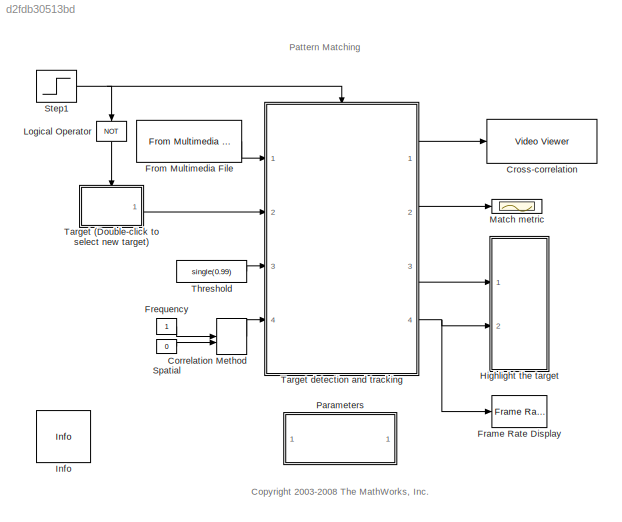
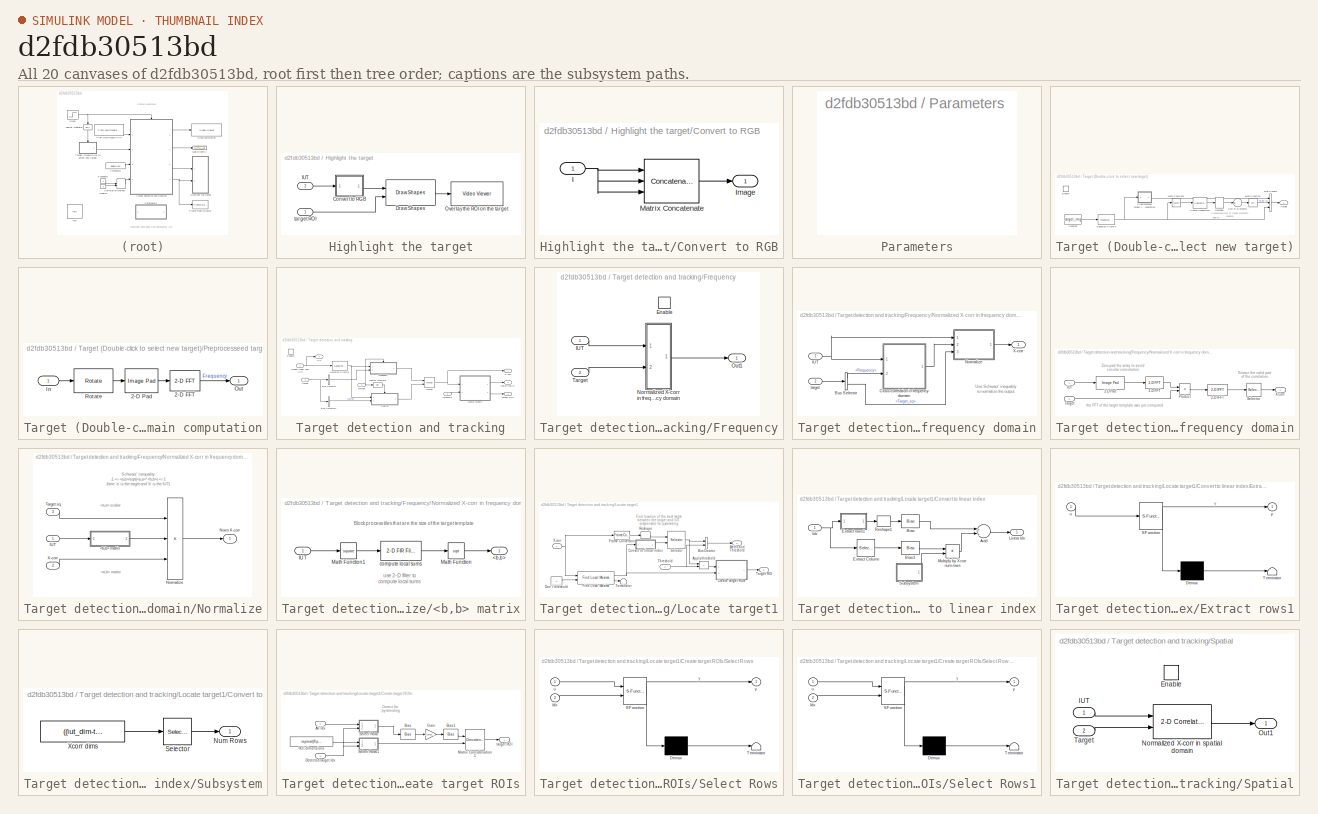
[diagram: thumbnail index - all 20 canvases of the model, root first then tree order]
MODEL slx_d2fdb30513bd
KIND model
CONFIG AbsTol = auto
CONFIG FixedStep = auto
CONFIG InitFcn = % load and initialize the data required by vippattern demo\n\n% get path to the model\nparam_path = 'vippattern/Parameters';\n\n% NOTE:  to set a new target run this command from command prompt:\n% set_param(param_path,'target',mat2str(target_img))\n% here, target_img must be a uint8 image\n\n% get AVI file name straight from From MM File block\nfmmf_path = 'vippattern/From Multimedia File';\n\n% get target w...<+964ch>
CONFIG MaxStep = auto
CONFIG MinStep = auto
CONFIG RelTol = 1e-3
CONFIG SampleTimeConstraint = Unconstrained
CONFIG Solver = FixedStepDiscrete
CONFIG SolverMode = SingleTasking
CONFIG SolverName = FixedStepDiscrete
CONFIG StartTime = 0.0
CONFIG StopTime = inf
BLOCK [ManualSwitch] Correlation Method
BLOCK [Reference] Cross-correlation  REF=visionsinks/Video Viewer
  Ports = [1]
  SourceBlock = visionsinks/Video Viewer
  SourceType = Video Viewer
  UserDataPersistent = on
BLOCK [Reference] Frame Rate Display  REF=visionsinks/Frame Rate
Display
  Ports = [1]
  SourceBlock = visionsinks/Frame Rate\nDisplay
  SourceType = Frame Rate Display
BLOCK [Constant] Frequency
  VectorParams1D = off
BLOCK [Reference] From Multimedia File  REF=dspvision/From Multimedia File
  Ports = [0, 1]
  SourceBlock = dspvision/From Multimedia File
  SourceType = From Multimedia File
BLOCK [SubSystem] Highlight the target
  Ports = [2]
  RequestExecContextInheritance = off
  Variant = off
BLOCK [SubSystem] Highlight the target/Convert to RGB
  Ports = [1, 1]
  RequestExecContextInheritance = off
  Variant = off
BLOCK [Inport] Highlight the target/Convert to RGB/I
  IconDisplay = Port number
BLOCK [Outport] Highlight the target/Convert to RGB/Image
  IconDisplay = Port number
BLOCK [Concatenate] Highlight the target/Convert to RGB/Matrix Concatenate
  ConcatenateDimension = 3
  Mode = Multidimensional array
  NumInputs = 3
  Ports = [3, 1]
BLOCK [Reference] Highlight the target/Draw Shapes  REF=visiontextngfix/Draw Shapes
  Ports = [2, 1]
  SourceBlock = visiontextngfix/Draw Shapes
  SourceType = Draw Shapes
BLOCK [Inport] Highlight the target/IUT
  IconDisplay = Port number
  Port = 2
BLOCK [Reference] Highlight the target/Overlay the ROI on the target  REF=visionsinks/Video Viewer
  Ports = [1]
  SourceBlock = visionsinks/Video Viewer
  SourceType = Video Viewer
  UserDataPersistent = on
BLOCK [Inport] Highlight the target/target ROI
  IconDisplay = Port number
BLOCK [Reference] Info  REF=vipmisc/Info
  Ports = []
  SourceBlock = vipmisc/Info
  SourceType = Info
BLOCK [Logic] Logical Operator
  AllPortsSameDT = off
  Operator = NOT
  OutDataTypeStr = boolean
  Ports = [1, 1]
BLOCK [Scope] Match metric
  Ports = [1]
  ScopeSpecificationString = Simulink.scopes.TimeScopeBlockCfg('CurrentConfiguration', extmgr.ConfigurationSet(extmgr.Configuration('Core','General UI',true),extmgr.Configuration('Core','Source UI',true),extmgr.Configuration('Sources','WiredSimulink',true,'DataLoggingSaveFormat','StructureWithTime','DataLoggingLimitDataPoints',true,'DataLoggingDecimation','1','DataLoggingDecimateData',true),extmgr.Configuration('Visuals','Tim...<+1685ch>
BLOCK [SubSystem] Parameters
  Ports = []
  RequestExecContextInheritance = off
  Variant = off
BLOCK [Constant] Spatial
  Value = 0
  VectorParams1D = off
BLOCK [Step] Step1
  Time = eps
BLOCK [SubSystem] Target (Double-click to select new target)
  OpenFcn = vippattern_gettemplate
  Ports = [0, 1, 1]
  RequestExecContextInheritance = off
  Variant = off
BLOCK [BusCreator] Target (Double-click to select new target)/Bus Creator
  DisplayOption = bar
  InheritFromInputs = on
  Inputs = 3
  Ports = [3, 1]
BLOCK [Constant] Target (Double-click to select new target)/Constant
  OutDataTypeStr = single
  Value = target_img
  VectorParams1D = off
BLOCK [EnablePort] Target (Double-click to select new target)/Enable
  Ports = []
  PropagateVarSize = During execution
BLOCK [FrameConversion] Target (Double-click to select new target)/Frame Conversion
  InheritSamplingMode = off
  OutFrame = Sample-based
  Ports = [1, 1]
BLOCK [Reference] Target (Double-click to select new target)/Gaussian Pyramid  REF=visiontransforms/Gaussian
Pyramid
  Ports = [1, 1]
  SourceBlock = visiontransforms/Gaussian\nPyramid
  SourceType = Gaussian Pyramid
BLOCK [Math] Target (Double-click to select new target)/Math Function
  Operator = sqrt
  Ports = [1, 1]
BLOCK [Math] Target (Double-click to select new target)/Math Function1
  Operator = square
  Ports = [1, 1]
BLOCK [SubSystem] Target (Double-click to select new target)/Preprocesseed target for frequency domain computation
  Ports = [1, 1]
  RequestExecContextInheritance = off
  Variant = off
BLOCK [Reference] Target (Double-click to select new target)/Preprocesseed target for frequency domain computation/2-D FFT  REF=visiontransforms/2-D FFT
  Ports = [1, 1]
  SourceBlock = visiontransforms/2-D FFT
  SourceType = 2-D FFT
BLOCK [Reference] Target (Double-click to select new target)/Preprocesseed target for frequency domain computation/2-D Pad  REF=visionutilities/Image Pad
  Ports = [1, 1]
  SourceBlock = visionutilities/Image Pad
  SourceType = Image Pad
BLOCK [Inport] Target (Double-click to select new target)/Preprocesseed target for frequency domain computation/In
  IconDisplay = Port number
BLOCK [Outport] Target (Double-click to select new target)/Preprocesseed target for frequency domain computation/Out
  IconDisplay = Port number
BLOCK [Reference] Target (Double-click to select new target)/Preprocesseed target for frequency domain computation/Rotate  REF=visiongeotforms/Rotate
  Ports = [1, 1]
  SourceBlock = visiongeotforms/Rotate
  SourceType = Rotate
BLOCK [Reshape] Target (Double-click to select new target)/Reshape
  Ports = [1, 1]
BLOCK [Sum] Target (Double-click to select new target)/Sum of Elements
  InputSameDT = off
  Inputs = +
  OutDataTypeStr = Inherit: Inherit via internal rule
  Ports = [1, 1]
  SaturateOnIntegerOverflow = off
BLOCK [Outport] Target (Double-click to select new target)/Target
  IconDisplay = Port number
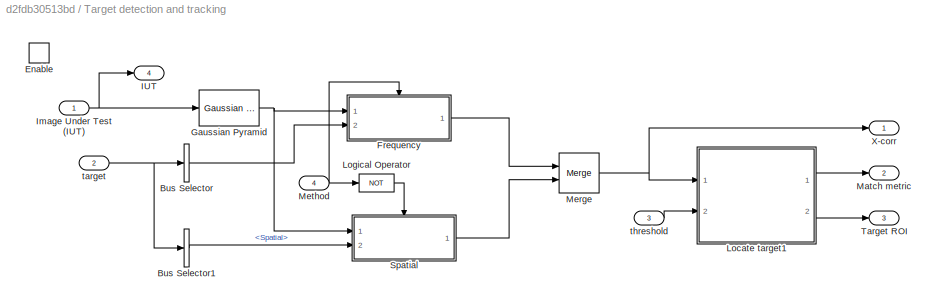
BLOCK [SubSystem] Target detection and tracking
  Ports = [4, 4, 1]
  RequestExecContextInheritance = off
  Variant = off
BLOCK [BusSelector] Target detection and tracking/Bus Selector
  OutputAsBus = on
  OutputSignals = Frequency,Target_sq
  Ports = [1, 1]
BLOCK [BusSelector] Target detection and tracking/Bus Selector1
  OutputSignals = Spatial
  Ports = [1, 1]
BLOCK [EnablePort] Target detection and tracking/Enable
  Ports = []
  PropagateVarSize = During execution
BLOCK [SubSystem] Target detection and tracking/Frequency
  Ports = [2, 1, 1]
  RequestExecContextInheritance = off
  TreatAsAtomicUnit = on
  Variant = off
BLOCK [EnablePort] Target detection and tracking/Frequency/Enable
  Ports = []
  PropagateVarSize = During execution
BLOCK [Inport] Target detection and tracking/Frequency/IUT
  IconDisplay = Port number
BLOCK [SubSystem] Target detection and tracking/Frequency/Normalized X-corr in frequency domain
  Ports = [2, 1]
  RequestExecContextInheritance = off
  Variant = off
BLOCK [BusSelector] Target detection and tracking/Frequency/Normalized X-corr in frequency domain/Bus Selector
  OutputSignals = Frequency,Target_sq
  Ports = [1, 2]
BLOCK [SubSystem] Target detection and tracking/Frequency/Normalized X-corr in frequency domain/Cross-correlation in frequency domain
  Ports = [2, 1]
  RequestExecContextInheritance = off
  Variant = off
BLOCK [Reference] Target detection and tracking/Frequency/Normalized X-corr in frequency domain/Cross-correlation in frequency domain/2-D FFT  REF=visiontransforms/2-D FFT
  Ports = [1, 1]
  SourceBlock = visiontransforms/2-D FFT
  SourceType = 2-D FFT
BLOCK [Reference] Target detection and tracking/Frequency/Normalized X-corr in frequency domain/Cross-correlation in frequency domain/2-D IFFT  REF=visiontransforms/2-D IFFT
  Ports = [1, 1]
  SourceBlock = visiontransforms/2-D IFFT
  SourceType = 2-D IFFT
BLOCK [Reference] Target detection and tracking/Frequency/Normalized X-corr in frequency domain/Cross-correlation in frequency domain/2-D Pad  REF=visionutilities/Image Pad
  Ports = [1, 1]
  SourceBlock = visionutilities/Image Pad
  SourceType = Image Pad
BLOCK [Inport] Target detection and tracking/Frequency/Normalized X-corr in frequency domain/Cross-correlation in frequency domain/IUT
  IconDisplay = Port number
BLOCK [Product] Target detection and tracking/Frequency/Normalized X-corr in frequency domain/Cross-correlation in frequency domain/Product
  InputSameDT = off
  OutDataTypeStr = Inherit: Inherit via internal rule
  Ports = [2, 1]
  SaturateOnIntegerOverflow = off
BLOCK [Selector] Target detection and tracking/Frequency/Normalized X-corr in frequency domain/Cross-correlation in frequency domain/Selector
  IndexOptions = Index vector (dialog),Index vector (dialog)
  Indices = [target_dim(1):iut_dim(1)],[target_dim(2):iut_dim(2)]
  InputPortWidth = 3
  NumberOfDimensions = 2
  OutputSizes = 1,1
  Ports = [1, 1]
BLOCK [Inport] Target detection and tracking/Frequency/Normalized X-corr in frequency domain/Cross-correlation in frequency domain/Target
  IconDisplay = Port number
  Port = 2
BLOCK [Outport] Target detection and tracking/Frequency/Normalized X-corr in frequency domain/Cross-correlation in frequency domain/X-Corr
  IconDisplay = Port number
BLOCK [Inport] Target detection and tracking/Frequency/Normalized X-corr in frequency domain/IUT
  IconDisplay = Port number
BLOCK [SubSystem] Target detection and tracking/Frequency/Normalized X-corr in frequency domain/Normalize
  Ports = [3, 1]
  RequestExecContextInheritance = off
  Variant = off
BLOCK [SubSystem] Target detection and tracking/Frequency/Normalized X-corr in frequency domain/Normalize/<b,b> matrix
  Ports = [1, 1]
  RequestExecContextInheritance = off
  Variant = off
BLOCK [Outport] Target detection and tracking/Frequency/Normalized X-corr in frequency domain/Normalize/<b,b> matrix/<b,b>
  IconDisplay = Port number
BLOCK [Inport] Target detection and tracking/Frequency/Normalized X-corr in frequency domain/Normalize/<b,b> matrix/IUT
  IconDisplay = Port number
BLOCK [Math] Target detection and tracking/Frequency/Normalized X-corr in frequency domain/Normalize/<b,b> matrix/Math Function
  Operator = sqrt
  Ports = [1, 1]
BLOCK [Math] Target detection and tracking/Frequency/Normalized X-corr in frequency domain/Normalize/<b,b> matrix/Math Function1
  Operator = square
  Ports = [1, 1]
BLOCK [Reference] Target detection and tracking/Frequency/Normalized X-corr in frequency domain/Normalize/<b,b> matrix/compute local sums  REF=visionfilter/2-D FIR Filter
  Ports = [1, 1]
  SourceBlock = visionfilter/2-D FIR Filter
  SourceType = 2-D FIR Filter
BLOCK [Inport] Target detection and tracking/Frequency/Normalized X-corr in frequency domain/Normalize/IUT
  IconDisplay = Port number
BLOCK [Outport] Target detection and tracking/Frequency/Normalized X-corr in frequency domain/Normalize/Norm X-corr
  IconDisplay = Port number
BLOCK [Product] Target detection and tracking/Frequency/Normalized X-corr in frequency domain/Normalize/Normalize
  InputSameDT = off
  Inputs = //*
  Ports = [3, 1]
BLOCK [Inport] Target detection and tracking/Frequency/Normalized X-corr in frequency domain/Normalize/Target sq
  IconDisplay = Port number
  Port = 3
BLOCK [Inport] Target detection and tracking/Frequency/Normalized X-corr in frequency domain/Normalize/X-corr
  IconDisplay = Port number
  Port = 2
BLOCK [Outport] Target detection and tracking/Frequency/Normalized X-corr in frequency domain/X-corr
  IconDisplay = Port number
BLOCK [Inport] Target detection and tracking/Frequency/Normalized X-corr in frequency domain/target
  IconDisplay = Port number
  Port = 2
BLOCK [Outport] Target detection and tracking/Frequency/Out1
  IconDisplay = Port number
  InitialOutput = 0
BLOCK [Inport] Target detection and tracking/Frequency/Target
  IconDisplay = Port number
  Port = 2
BLOCK [Reference] Target detection and tracking/Gaussian Pyramid  REF=visiontransforms/Gaussian
Pyramid
  Ports = [1, 1]
  SourceBlock = visiontransforms/Gaussian\nPyramid
  SourceType = Gaussian Pyramid
BLOCK [Outport] Target detection and tracking/IUT
  IconDisplay = Port number
  Port = 4
BLOCK [Inport] Target detection and tracking/Image Under Test (IUT)
  IconDisplay = Port number
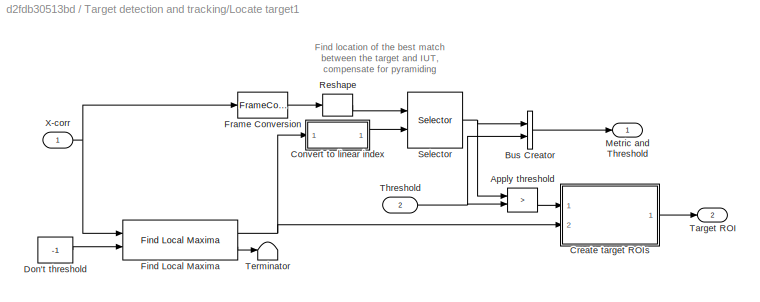
BLOCK [SubSystem] Target detection and tracking/Locate target1
  Ports = [2, 2]
  RequestExecContextInheritance = off
  Variant = off
BLOCK [RelationalOperator] Target detection and tracking/Locate target1/Apply threshold
  InputSameDT = off
  Operator = >
  OutDataTypeStr = boolean
  Ports = [2, 1]
  ZeroCross = off
BLOCK [BusCreator] Target detection and tracking/Locate target1/Bus Creator
  DisplayOption = bar
  InheritFromInputs = on
  Inputs = 2
  Ports = [2, 1]
BLOCK [SubSystem] Target detection and tracking/Locate target1/Convert to linear index
  Ports = [1, 1]
  RequestExecContextInheritance = off
  Variant = off
BLOCK [Sum] Target detection and tracking/Locate target1/Convert to linear index/Add
  InputSameDT = off
  OutDataTypeStr = Inherit: Inherit via internal rule
  Ports = [2, 1]
  SaturateOnIntegerOverflow = off
BLOCK [Bias] Target detection and tracking/Locate target1/Convert to linear index/Bias
  Bias = -1
BLOCK [Bias] Target detection and tracking/Locate target1/Convert to linear index/Bias1
  Bias = -1
BLOCK [Selector] Target detection and tracking/Locate target1/Convert to linear index/Extract Column
  IndexOptions = Select all,Index vector (dialog)
  Indices = [target_dim(1):iut_dim(1)],[1]
  InputPortWidth = 3
  NumberOfDimensions = 2
  OutputSizes = 1,1
  Ports = [1, 1]
BLOCK [SubSystem] Target detection and tracking/Locate target1/Convert to linear index/Extract rows1
  ErrorFcn = Stateflow.Translate.translate
  PermitHierarchicalResolution = ExplicitOnly
  Ports = [1, 1]
  RequestExecContextInheritance = off
  SFBlockType = MATLAB Function
  TreatAsAtomicUnit = on
  Variant = off
BLOCK [Demux] Target detection and tracking/Locate target1/Convert to linear index/Extract rows1/ Demux 
  Outputs = 1
  Ports = [1, 1]
BLOCK [S-Function] Target detection and tracking/Locate target1/Convert to linear index/Extract rows1/ SFunction 
  EnableBusSupport = off
  FunctionName = sf_sfun
  PortCounts = [1 2]
  Ports = [1, 2]
  SFunctionDeploymentMode = off
  Tag = Stateflow S-Function vippattern 1
BLOCK [Terminator] Target detection and tracking/Locate target1/Convert to linear index/Extract rows1/ Terminator 
BLOCK [Inport] Target detection and tracking/Locate target1/Convert to linear index/Extract rows1/u
  IconDisplay = Port number
BLOCK [Outport] Target detection and tracking/Locate target1/Convert to linear index/Extract rows1/y
  IconDisplay = Port number
BLOCK [Inport] Target detection and tracking/Locate target1/Convert to linear index/Idx
  IconDisplay = Port number
BLOCK [Outport] Target detection and tracking/Locate target1/Convert to linear index/Linear Idx
  IconDisplay = Port number
BLOCK [Product] Target detection and tracking/Locate target1/Convert to linear index/Multiply by Xcorr num rows
  InputSameDT = off
  OutDataTypeStr = uint32
  Ports = [2, 1]
  SaturateOnIntegerOverflow = off
BLOCK [Reshape] Target detection and tracking/Locate target1/Convert to linear index/Reshape1
  OutputDimensionality = Column vector (2-D)
  Ports = [1, 1]
BLOCK [SubSystem] Target detection and tracking/Locate target1/Convert to linear index/Subsystem
  Ports = [0, 1]
  RequestExecContextInheritance = off
  Variant = off
BLOCK [Outport] Target detection and tracking/Locate target1/Convert to linear index/Subsystem/Num Rows
  IconDisplay = Port number
BLOCK [Selector] Target detection and tracking/Locate target1/Convert to linear index/Subsystem/Selector
  IndexOptions = Index vector (dialog),Index vector (dialog)
  Indices = 1,1
  InputPortWidth = 3
  NumberOfDimensions = 2
  OutputSizes = 1,1
  Ports = [1, 1]
BLOCK [Constant] Target detection and tracking/Locate target1/Convert to linear index/Subsystem/Xcorr dims
  OutDataTypeStr = Inherit: Inherit via back propagation
  Value = ((iut_dim-target_dim)+1)
  VectorParams1D = off
BLOCK [SubSystem] Target detection and tracking/Locate target1/Create target ROIs
  Ports = [2, 1]
  RequestExecContextInheritance = off
  Variant = off
BLOCK [Inport] Target detection and tracking/Locate target1/Create target ROIs/All Idx
  IconDisplay = Port number
  Port = 2
BLOCK [Bias] Target detection and tracking/Locate target1/Create target ROIs/Bias
  Bias = -1
BLOCK [Bias] Target detection and tracking/Locate target1/Create target ROIs/Bias1
  Bias = +1
BLOCK [Inport] Target detection and tracking/Locate target1/Create target ROIs/Detected-target Idx
  IconDisplay = Port number
BLOCK [Gain] Target detection and tracking/Locate target1/Create target ROIs/Gain
  Gain = 2^pfactor
  ParamDataTypeStr = float('single')
  RndMeth = Nearest
BLOCK [Concatenate] Target detection and tracking/Locate target1/Create target ROIs/Matrix Concatenation1
  ConcatenateDimension = 2
  Mode = Multidimensional array
  Ports = [2, 1]
BLOCK [Constant] Target detection and tracking/Locate target1/Create target ROIs/ROI dimensions
  OutDataTypeStr = single
  Value = repmat(fliplr(target_dim_nopyramid),[num_targets,1])
  VectorParams1D = off
BLOCK [SubSystem] Target detection and tracking/Locate target1/Create target ROIs/Select Rows
  ErrorFcn = Stateflow.Translate.translate
  PermitHierarchicalResolution = ExplicitOnly
  Ports = [2, 1]
  RequestExecContextInheritance = off
  SFBlockType = MATLAB Function
  TreatAsAtomicUnit = on
  Variant = off
BLOCK [Demux] Target detection and tracking/Locate target1/Create target ROIs/Select Rows/ Demux 
  Outputs = 1
  Ports = [1, 1]
BLOCK [S-Function] Target detection and tracking/Locate target1/Create target ROIs/Select Rows/ SFunction 
  EnableBusSupport = off
  FunctionName = sf_sfun
  PortCounts = [2 2]
  Ports = [2, 2]
  SFunctionDeploymentMode = off
  Tag = Stateflow S-Function vippattern 2
BLOCK [Terminator] Target detection and tracking/Locate target1/Create target ROIs/Select Rows/ Terminator 
BLOCK [Inport] Target detection and tracking/Locate target1/Create target ROIs/Select Rows/Idx
  IconDisplay = Port number
  Port = 2
BLOCK [Inport] Target detection and tracking/Locate target1/Create target ROIs/Select Rows/u
  IconDisplay = Port number
BLOCK [Outport] Target detection and tracking/Locate target1/Create target ROIs/Select Rows/y
  IconDisplay = Port number
BLOCK [SubSystem] Target detection and tracking/Locate target1/Create target ROIs/Select Rows1
  ErrorFcn = Stateflow.Translate.translate
  PermitHierarchicalResolution = ExplicitOnly
  Ports = [2, 1]
  RequestExecContextInheritance = off
  SFBlockType = MATLAB Function
  TreatAsAtomicUnit = on
  Variant = off
BLOCK [Demux] Target detection and tracking/Locate target1/Create target ROIs/Select Rows1/ Demux 
  Outputs = 1
  Ports = [1, 1]
BLOCK [S-Function] Target detection and tracking/Locate target1/Create target ROIs/Select Rows1/ SFunction 
  EnableBusSupport = off
  FunctionName = sf_sfun
  PortCounts = [2 2]
  Ports = [2, 2]
  SFunctionDeploymentMode = off
  Tag = Stateflow S-Function vippattern 3
BLOCK [Terminator] Target detection and tracking/Locate target1/Create target ROIs/Select Rows1/ Terminator 
BLOCK [Inport] Target detection and tracking/Locate target1/Create target ROIs/Select Rows1/Idx
  IconDisplay = Port number
  Port = 2
BLOCK [Inport] Target detection and tracking/Locate target1/Create target ROIs/Select Rows1/u
  IconDisplay = Port number
BLOCK [Outport] Target detection and tracking/Locate target1/Create target ROIs/Select Rows1/y
  IconDisplay = Port number
BLOCK [Outport] Target detection and tracking/Locate target1/Create target ROIs/target ROI
  IconDisplay = Port number
BLOCK [Constant] Target detection and tracking/Locate target1/Don't threshold
  OutDataTypeStr = Inherit: Inherit via back propagation
  Value = -1
  VectorParams1D = off
BLOCK [Reference] Target detection and tracking/Locate target1/Find Local Maxima  REF=visionstatistics/Find Local Maxima
  Ports = [2, 2]
  SourceBlock = visionstatistics/Find Local Maxima
  SourceType = Find Local Maxima
BLOCK [FrameConversion] Target detection and tracking/Locate target1/Frame Conversion
  InheritSamplingMode = off
  OutFrame = Sample-based
  Ports = [1, 1]
BLOCK [Outport] Target detection and tracking/Locate target1/Metric and Threshold
  IconDisplay = Port number
BLOCK [Reshape] Target detection and tracking/Locate target1/Reshape
  Ports = [1, 1]
BLOCK [Selector] Target detection and tracking/Locate target1/Selector
  IndexMode = Zero-based
  IndexOptions = Index vector (port)
  Indices = [1 3]
  InputPortWidth = prod(((iut_dim-target_dim)+1))
  OutputSizes = 1
  Ports = [2, 1]
BLOCK [Outport] Target detection and tracking/Locate target1/Target ROI
  IconDisplay = Port number
  Port = 2
BLOCK [Terminator] Target detection and tracking/Locate target1/Terminator
BLOCK [Inport] Target detection and tracking/Locate target1/Threshold
  IconDisplay = Port number
  Port = 2
BLOCK [Inport] Target detection and tracking/Locate target1/X-corr
  IconDisplay = Port number
BLOCK [Logic] Target detection and tracking/Logical Operator
  AllPortsSameDT = off
  Operator = NOT
  OutDataTypeStr = boolean
  Ports = [1, 1]
BLOCK [Outport] Target detection and tracking/Match metric
  IconDisplay = Port number
  Port = 2
BLOCK [Merge] Target detection and tracking/Merge
  Ports = [2, 1]
BLOCK [Inport] Target detection and tracking/Method
  IconDisplay = Port number
  Port = 4
BLOCK [SubSystem] Target detection and tracking/Spatial
  Ports = [2, 1, 1]
  RequestExecContextInheritance = off
  TreatAsAtomicUnit = on
  Variant = off
BLOCK [EnablePort] Target detection and tracking/Spatial/Enable
  Ports = []
  PropagateVarSize = During execution
BLOCK [Inport] Target detection and tracking/Spatial/IUT
  IconDisplay = Port number
BLOCK [Reference] Target detection and tracking/Spatial/Normalized X-corr in spatial domain  REF=visionstatistics/2-D Correlation
  Ports = [2, 1]
  SourceBlock = visionstatistics/2-D Correlation
  SourceType = 2-D Correlation
BLOCK [Outport] Target detection and tracking/Spatial/Out1
  IconDisplay = Port number
  InitialOutput = 0
BLOCK [Inport] Target detection and tracking/Spatial/Target
  IconDisplay = Port number
  Port = 2
BLOCK [Outport] Target detection and tracking/Target ROI
  IconDisplay = Port number
  Port = 3
BLOCK [Outport] Target detection and tracking/X-corr
  IconDisplay = Port number
BLOCK [Inport] Target detection and tracking/target
  IconDisplay = Port number
  Port = 2
BLOCK [Inport] Target detection and tracking/threshold
  IconDisplay = Port number
  Port = 3
BLOCK [Constant] Threshold
  Value = single(0.99)
  VectorParams1D = off
ANNOTATION (root): <copyright redacted>
ANNOTATION (root): Pattern Matching
ANNOTATION Target (Double-click to select new target): Precompute sum of target elements squared
ANNOTATION Target detection and tracking/Frequency/Normalized X-corr in frequency domain: Use Schwarz' inequality to normalize the output
ANNOTATION Target detection and tracking/Frequency/Normalized X-corr in frequency domain/Cross-correlation in frequency domain: Extract the valid part of the correlation
ANNOTATION Target detection and tracking/Frequency/Normalized X-corr in frequency domain/Cross-correlation in frequency domain: Zero-pad the array to avoid circular convolution
ANNOTATION Target detection and tracking/Frequency/Normalized X-corr in frequency domain/Cross-correlation in frequency domain: the FFT of the target template was pre-computed
ANNOTATION Target detection and tracking/Frequency/Normalized X-corr in frequency domain/Normalize: scalar
ANNOTATION Target detection and tracking/Frequency/Normalized X-corr in frequency domain/Normalize: matrix
ANNOTATION Target detection and tracking/Frequency/Normalized X-corr in frequency domain/Normalize: Schwarz' inequality: -1 /sqrt( * ) <= 1 (here 'a' is the target and 'b' is the IUT)
ANNOTATION Target detection and tracking/Frequency/Normalized X-corr in frequency domain/Normalize/<b,b> matrix: Block process tiles that are the size of the target template
ANNOTATION Target detection and tracking/Frequency/Normalized X-corr in frequency domain/Normalize/<b,b> matrix: use 2-D filter to compute local sums
ANNOTATION Target detection and tracking/Locate target1: Find location of the best match between the target and IUT, compensate for pyramiding
ANNOTATION Target detection and tracking/Locate target1/Create target ROIs: Correct for pyramiding
LINE Correlation Method:1 -> Target detection and tracking:4
LINE Frequency:1 -> Correlation Method:1
LINE From Multimedia File:1 -> Target detection and tracking:1
NET Highlight the target/Convert to RGB/I:1 -> Highlight the target/Convert to RGB/Matrix Concatenate:1, Highlight the target/Convert to RGB/Matrix Concatenate:2, Highlight the target/Convert to RGB/Matrix Concatenate:3
LINE Highlight the target/Convert to RGB/Matrix Concatenate:1 -> Highlight the target/Convert to RGB/Image:1
LINE Highlight the target/Convert to RGB:1 -> Highlight the target/Draw Shapes:1
LINE Highlight the target/Draw Shapes:1 -> Highlight the target/Overlay the ROI on the target:1
LINE Highlight the target/IUT:1 -> Highlight the target/Convert to RGB:1
LINE Highlight the target/target ROI:1 -> Highlight the target/Draw Shapes:2
LINE Logical Operator:1 -> Target (Double-click to select new target):enable
LINE Spatial:1 -> Correlation Method:2
NET Step1:1 -> Logical Operator:1, Target detection and tracking:enable
LINE Target (Double-click to select new target)/Bus Creator:1 -> Target (Double-click to select new target)/Target:1
LINE Target (Double-click to select new target)/Constant:1 -> Target (Double-click to select new target)/Gaussian Pyramid:1
LINE Target (Double-click to select new target)/Frame Conversion:1 -> Target (Double-click to select new target)/Reshape:1
NET Target (Double-click to select new target)/Gaussian Pyramid:1 -> Target (Double-click to select new target)/Bus Creator:3, Target (Double-click to select new target)/Math Function1:1, Target (Double-click to select new target)/Preprocesseed target for frequency domain computation:1
LINE Target (Double-click to select new target)/Math Function1:1 -> Target (Double-click to select new target)/Frame Conversion:1
LINE Target (Double-click to select new target)/Math Function:1 -> Target (Double-click to select new target)/Bus Creator:2
LINE Target (Double-click to select new target)/Preprocesseed target for frequency domain computation/2-D FFT:1 -> Target (Double-click to select new target)/Preprocesseed target for frequency domain computation/Out:1
LINE Target (Double-click to select new target)/Preprocesseed target for frequency domain computation/2-D Pad:1 -> Target (Double-click to select new target)/Preprocesseed target for frequency domain computation/2-D FFT:1
LINE Target (Double-click to select new target)/Preprocesseed target for frequency domain computation/In:1 -> Target (Double-click to select new target)/Preprocesseed target for frequency domain computation/Rotate:1
LINE Target (Double-click to select new target)/Preprocesseed target for frequency domain computation/Rotate:1 -> Target (Double-click to select new target)/Preprocesseed target for frequency domain computation/2-D Pad:1
LINE Target (Double-click to select new target)/Preprocesseed target for frequency domain computation:1 -> Target (Double-click to select new target)/Bus Creator:1
LINE Target (Double-click to select new target)/Reshape:1 -> Target (Double-click to select new target)/Sum of Elements:1
LINE Target (Double-click to select new target)/Sum of Elements:1 -> Target (Double-click to select new target)/Math Function:1
LINE Target (Double-click to select new target):1 -> Target detection and tracking:2
LINE Target detection and tracking/Bus Selector1:1 -> Target detection and tracking/Spatial:2
LINE Target detection and tracking/Bus Selector:1 -> Target detection and tracking/Frequency:2
LINE Target detection and tracking/Frequency/IUT:1 -> Target detection and tracking/Frequency/Normalized X-corr in frequency domain:1
LINE Target detection and tracking/Frequency/Normalized X-corr in frequency domain/Bus Selector:1 -> Target detection and tracking/Frequency/Normalized X-corr in frequency domain/Cross-correlation in frequency domain:2
LINE Target detection and tracking/Frequency/Normalized X-corr in frequency domain/Bus Selector:2 -> Target detection and tracking/Frequency/Normalized X-corr in frequency domain/Normalize:3
LINE Target detection and tracking/Frequency/Normalized X-corr in frequency domain/Cross-correlation in frequency domain/2-D FFT:1 -> Target detection and tracking/Frequency/Normalized X-corr in frequency domain/Cross-correlation in frequency domain/Product:1
LINE Target detection and tracking/Frequency/Normalized X-corr in frequency domain/Cross-correlation in frequency domain/2-D IFFT:1 -> Target detection and tracking/Frequency/Normalized X-corr in frequency domain/Cross-correlation in frequency domain/Selector:1
LINE Target detection and tracking/Frequency/Normalized X-corr in frequency domain/Cross-correlation in frequency domain/2-D Pad:1 -> Target detection and tracking/Frequency/Normalized X-corr in frequency domain/Cross-correlation in frequency domain/2-D FFT:1
LINE Target detection and tracking/Frequency/Normalized X-corr in frequency domain/Cross-correlation in frequency domain/IUT:1 -> Target detection and tracking/Frequency/Normalized X-corr in frequency domain/Cross-correlation in frequency domain/2-D Pad:1
LINE Target detection and tracking/Frequency/Normalized X-corr in frequency domain/Cross-correlation in frequency domain/Product:1 -> Target detection and tracking/Frequency/Normalized X-corr in frequency domain/Cross-correlation in frequency domain/2-D IFFT:1
LINE Target detection and tracking/Frequency/Normalized X-corr in frequency domain/Cross-correlation in frequency domain/Selector:1 -> Target detection and tracking/Frequency/Normalized X-corr in frequency domain/Cross-correlation in frequency domain/X-Corr:1
LINE Target detection and tracking/Frequency/Normalized X-corr in frequency domain/Cross-correlation in frequency domain/Target:1 -> Target detection and tracking/Frequency/Normalized X-corr in frequency domain/Cross-correlation in frequency domain/Product:2
LINE Target detection and tracking/Frequency/Normalized X-corr in frequency domain/Cross-correlation in frequency domain:1 -> Target detection and tracking/Frequency/Normalized X-corr in frequency domain/Normalize:2
NET Target detection and tracking/Frequency/Normalized X-corr in frequency domain/IUT:1 -> Target detection and tracking/Frequency/Normalized X-corr in frequency domain/Cross-correlation in frequency domain:1, Target detection and tracking/Frequency/Normalized X-corr in frequency domain/Normalize:1
LINE Target detection and tracking/Frequency/Normalized X-corr in frequency domain/Normalize/<b,b> matrix/IUT:1 -> Target detection and tracking/Frequency/Normalized X-corr in frequency domain/Normalize/<b,b> matrix/Math Function1:1
LINE Target detection and tracking/Frequency/Normalized X-corr in frequency domain/Normalize/<b,b> matrix/Math Function1:1 -> Target detection and tracking/Frequency/Normalized X-corr in frequency domain/Normalize/<b,b> matrix/compute local sums:1
LINE Target detection and tracking/Frequency/Normalized X-corr in frequency domain/Normalize/<b,b> matrix/Math Function:1 -> Target detection and tracking/Frequency/Normalized X-corr in frequency domain/Normalize/<b,b> matrix/<b,b>:1
LINE Target detection and tracking/Frequency/Normalized X-corr in frequency domain/Normalize/<b,b> matrix/compute local sums:1 -> Target detection and tracking/Frequency/Normalized X-corr in frequency domain/Normalize/<b,b> matrix/Math Function:1
LINE Target detection and tracking/Frequency/Normalized X-corr in frequency domain/Normalize/<b,b> matrix:1 -> Target detection and tracking/Frequency/Normalized X-corr in frequency domain/Normalize/Normalize:2
LINE Target detection and tracking/Frequency/Normalized X-corr in frequency domain/Normalize/IUT:1 -> Target detection and tracking/Frequency/Normalized X-corr in frequency domain/Normalize/<b,b> matrix:1
LINE Target detection and tracking/Frequency/Normalized X-corr in frequency domain/Normalize/Normalize:1 -> Target detection and tracking/Frequency/Normalized X-corr in frequency domain/Normalize/Norm X-corr:1
LINE Target detection and tracking/Frequency/Normalized X-corr in frequency domain/Normalize/Target sq:1 -> Target detection and tracking/Frequency/Normalized X-corr in frequency domain/Normalize/Normalize:1
LINE Target detection and tracking/Frequency/Normalized X-corr in frequency domain/Normalize/X-corr:1 -> Target detection and tracking/Frequency/Normalized X-corr in frequency domain/Normalize/Normalize:3
LINE Target detection and tracking/Frequency/Normalized X-corr in frequency domain/Normalize:1 -> Target detection and tracking/Frequency/Normalized X-corr in frequency domain/X-corr:1
LINE Target detection and tracking/Frequency/Normalized X-corr in frequency domain/target:1 -> Target detection and tracking/Frequency/Normalized X-corr in frequency domain/Bus Selector:1
LINE Target detection and tracking/Frequency/Normalized X-corr in frequency domain:1 -> Target detection and tracking/Frequency/Out1:1
LINE Target detection and tracking/Frequency/Target:1 -> Target detection and tracking/Frequency/Normalized X-corr in frequency domain:2
LINE Target detection and tracking/Frequency:1 -> Target detection and tracking/Merge:1
NET Target detection and tracking/Gaussian Pyramid:1 -> Target detection and tracking/Frequency:1, Target detection and tracking/Spatial:1
NET Target detection and tracking/Image Under Test (IUT):1 -> Target detection and tracking/Gaussian Pyramid:1, Target detection and tracking/IUT:1
LINE Target detection and tracking/Locate target1/Apply threshold:1 -> Target detection and tracking/Locate target1/Create target ROIs:1
LINE Target detection and tracking/Locate target1/Bus Creator:1 -> Target detection and tracking/Locate target1/Metric and Threshold:1
LINE Target detection and tracking/Locate target1/Convert to linear index/Add:1 -> Target detection and tracking/Locate target1/Convert to linear index/Linear Idx:1
LINE Target detection and tracking/Locate target1/Convert to linear index/Bias1:1 -> Target detection and tracking/Locate target1/Convert to linear index/Multiply by Xcorr num rows:1
LINE Target detection and tracking/Locate target1/Convert to linear index/Bias:1 -> Target detection and tracking/Locate target1/Convert to linear index/Add:1
LINE Target detection and tracking/Locate target1/Convert to linear index/Extract Column:1 -> Target detection and tracking/Locate target1/Convert to linear index/Bias1:1
LINE Target detection and tracking/Locate target1/Convert to linear index/Extract rows1:1 -> Target detection and tracking/Locate target1/Convert to linear index/Reshape1:1
NET Target detection and tracking/Locate target1/Convert to linear index/Idx:1 -> Target detection and tracking/Locate target1/Convert to linear index/Extract Column:1, Target detection and tracking/Locate target1/Convert to linear index/Extract rows1:1
LINE Target detection and tracking/Locate target1/Convert to linear index/Multiply by Xcorr num rows:1 -> Target detection and tracking/Locate target1/Convert to linear index/Add:2
LINE Target detection and tracking/Locate target1/Convert to linear index/Reshape1:1 -> Target detection and tracking/Locate target1/Convert to linear index/Bias:1
LINE Target detection and tracking/Locate target1/Convert to linear index/Subsystem/Selector:1 -> Target detection and tracking/Locate target1/Convert to linear index/Subsystem/Num Rows:1
LINE Target detection and tracking/Locate target1/Convert to linear index/Subsystem/Xcorr dims:1 -> Target detection and tracking/Locate target1/Convert to linear index/Subsystem/Selector:1
LINE Target detection and tracking/Locate target1/Convert to linear index/Subsystem:1 -> Target detection and tracking/Locate target1/Convert to linear index/Multiply by Xcorr num rows:2
LINE Target detection and tracking/Locate target1/Convert to linear index:1 -> Target detection and tracking/Locate target1/Selector:2
LINE Target detection and tracking/Locate target1/Create target ROIs/All Idx:1 -> Target detection and tracking/Locate target1/Create target ROIs/Select Rows:1
LINE Target detection and tracking/Locate target1/Create target ROIs/Bias1:1 -> Target detection and tracking/Locate target1/Create target ROIs/Matrix Concatenation1:1
LINE Target detection and tracking/Locate target1/Create target ROIs/Bias:1 -> Target detection and tracking/Locate target1/Create target ROIs/Gain:1
NET Target detection and tracking/Locate target1/Create target ROIs/Detected-target Idx:1 -> Target detection and tracking/Locate target1/Create target ROIs/Select Rows1:2, Target detection and tracking/Locate target1/Create target ROIs/Select Rows:2
LINE Target detection and tracking/Locate target1/Create target ROIs/Gain:1 -> Target detection and tracking/Locate target1/Create target ROIs/Bias1:1
LINE Target detection and tracking/Locate target1/Create target ROIs/Matrix Concatenation1:1 -> Target detection and tracking/Locate target1/Create target ROIs/target ROI:1
LINE Target detection and tracking/Locate target1/Create target ROIs/ROI dimensions:1 -> Target detection and tracking/Locate target1/Create target ROIs/Select Rows1:1
LINE Target detection and tracking/Locate target1/Create target ROIs/Select Rows1:1 -> Target detection and tracking/Locate target1/Create target ROIs/Matrix Concatenation1:2
LINE Target detection and tracking/Locate target1/Create target ROIs/Select Rows:1 -> Target detection and tracking/Locate target1/Create target ROIs/Bias:1
LINE Target detection and tracking/Locate target1/Create target ROIs:1 -> Target detection and tracking/Locate target1/Target ROI:1
LINE Target detection and tracking/Locate target1/Don't threshold:1 -> Target detection and tracking/Locate target1/Find Local Maxima:2
NET Target detection and tracking/Locate target1/Find Local Maxima:1 -> Target detection and tracking/Locate target1/Convert to linear index:1, Target detection and tracking/Locate target1/Create target ROIs:2
LINE Target detection and tracking/Locate target1/Find Local Maxima:2 -> Target detection and tracking/Locate target1/Terminator:1
LINE Target detection and tracking/Locate target1/Frame Conversion:1 -> Target detection and tracking/Locate target1/Reshape:1
LINE Target detection and tracking/Locate target1/Reshape:1 -> Target detection and tracking/Locate target1/Selector:1
NET Target detection and tracking/Locate target1/Selector:1 -> Target detection and tracking/Locate target1/Apply threshold:1, Target detection and tracking/Locate target1/Bus Creator:1
NET Target detection and tracking/Locate target1/Threshold:1 -> Target detection and tracking/Locate target1/Apply threshold:2, Target detection and tracking/Locate target1/Bus Creator:2
NET Target detection and tracking/Locate target1/X-corr:1 -> Target detection and tracking/Locate target1/Find Local Maxima:1, Target detection and tracking/Locate target1/Frame Conversion:1
LINE Target detection and tracking/Locate target1:1 -> Target detection and tracking/Match metric:1
LINE Target detection and tracking/Locate target1:2 -> Target detection and tracking/Target ROI:1
LINE Target detection and tracking/Logical Operator:1 -> Target detection and tracking/Spatial:enable
NET Target detection and tracking/Merge:1 -> Target detection and tracking/Locate target1:1, Target detection and tracking/X-corr:1
NET Target detection and tracking/Method:1 -> Target detection and tracking/Frequency:enable, Target detection and tracking/Logical Operator:1
LINE Target detection and tracking/Spatial/IUT:1 -> Target detection and tracking/Spatial/Normalized X-corr in spatial domain:1
LINE Target detection and tracking/Spatial/Normalized X-corr in spatial domain:1 -> Target detection and tracking/Spatial/Out1:1
LINE Target detection and tracking/Spatial/Target:1 -> Target detection and tracking/Spatial/Normalized X-corr in spatial domain:2
LINE Target detection and tracking/Spatial:1 -> Target detection and tracking/Merge:2
NET Target detection and tracking/target:1 -> Target detection and tracking/Bus Selector1:1, Target detection and tracking/Bus Selector:1
LINE Target detection and tracking/threshold:1 -> Target detection and tracking/Locate target1:2
LINE Target detection and tracking:1 -> Cross-correlation:1
LINE Target detection and tracking:2 -> Match metric:1
LINE Target detection and tracking:3 -> Highlight the target:1
NET Target detection and tracking:4 -> Frame Rate Display:1, Highlight the target:2
LINE Threshold:1 -> Target detection and tracking:3
note: NET lines group one-source signal fan-out (src -> all destinations, sorted); 1:1 wires keep LINE
CHART Target detection and tracking/Locate target1/Convert to linear index/Extract rows1 states=1 transitions=1
  STATE_LABEL 'eML_blk_kernel()'
  STATE_LABEL 'SCRIPT:\nfunction y = fcn(u)\n%#codegen\nl = size(u); \ny = u(:,l(2));'
CHART Target detection and tracking/Locate target1/Create target ROIs/Select Rows states=1 transitions=1
  STATE_LABEL 'eML_blk_kernel()'
  STATE_LABEL 'SCRIPT:\nfunction y = fcn(u, Idx)\n%#codegen\n\ny = u;\ny(~Idx,:)=0;'
CHART Target detection and tracking/Locate target1/Create target ROIs/Select Rows1 states=1 transitions=1
  STATE_LABEL 'eML_blk_kernel()'
  STATE_LABEL 'SCRIPT:\nfunction y = fcn(u, Idx)\n%#codegen\n\ny = u;\ny(~Idx,:)=0;'
